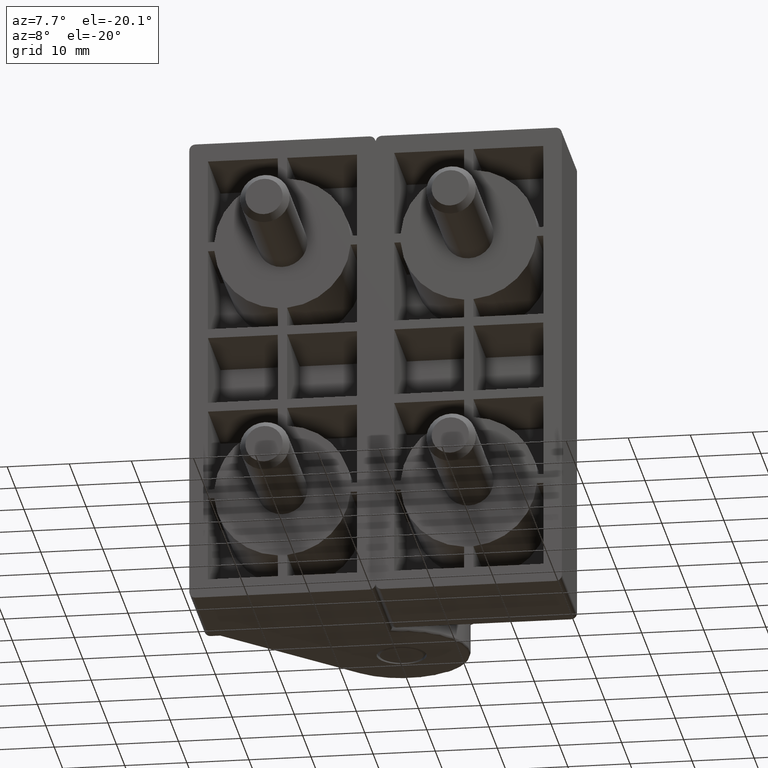
[diagram: clean part render]
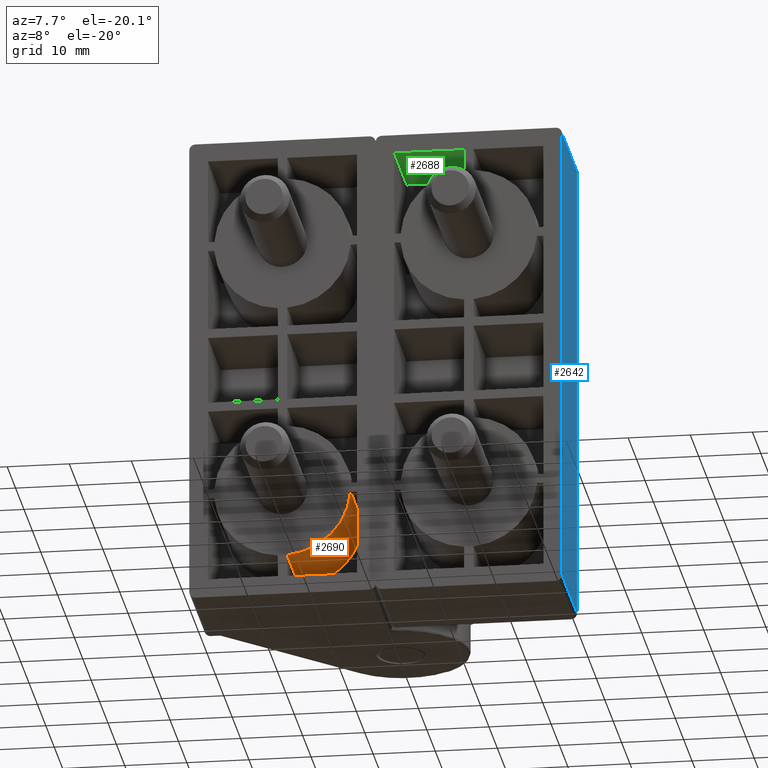
[diagram: same view with three faces highlighted in distinct colors, each labeled with its STEP entity id]
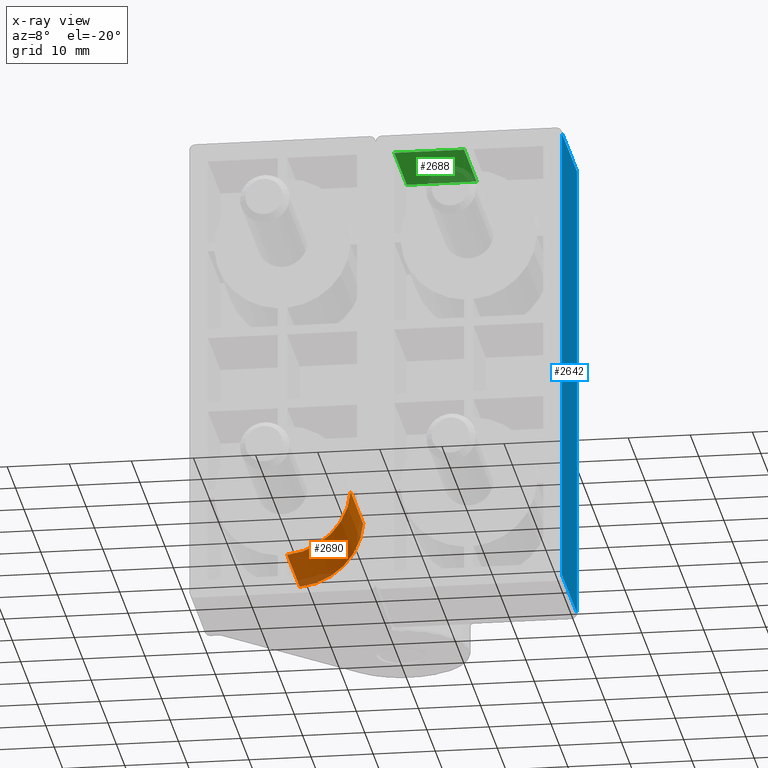
[diagram: x-ray of the same camera — body ghosted, the three highlighted faces saturated]
A machine part, auxiliary view with three faces highlighted in distinct colors.
The next image is the same camera in x-ray (body ghosted, the three faces saturated) — at least one of them is partly hidden behind the body in this view.
Their STEP definitions:

[orange] entity #2690 — the highlighted cylindrical surface (partial cylindrical patch) has radius 11 mm, axis along (0, -1, -0).
#191=LINE('',#4427,#434);
#192=LINE('',#4431,#435);
#434=VECTOR('',#3573,15.);
#435=VECTOR('',#3578,15.);
#679=CYLINDRICAL_SURFACE('',#2948,11.);
#824=FACE_OUTER_BOUND('',#1014,.T.);
#1014=EDGE_LOOP('',(#2295,#2296,#2297,#2298));
#1160=CIRCLE('',#2884,11.);
#1176=CIRCLE('',#2949,11.);
#1361=VERTEX_POINT('',#4276);
#1362=VERTEX_POINT('',#4278);
#1390=VERTEX_POINT('',#4425);
#1391=VERTEX_POINT('',#4429);
#1652=EDGE_CURVE('',#1362,#1361,#1160,.T.);
#1713=EDGE_CURVE('',#1390,#1361,#191,.T.);
#1714=EDGE_CURVE('',#1391,#1390,#1176,.T.);
#1715=EDGE_CURVE('',#1391,#1362,#192,.T.);
#2295=ORIENTED_EDGE('',*,*,#1652,.T.);
#2296=ORIENTED_EDGE('',*,*,#1713,.F.);
#2297=ORIENTED_EDGE('',*,*,#1714,.F.);
#2298=ORIENTED_EDGE('',*,*,#1715,.T.);
#2690=ADVANCED_FACE('',(#824),#679,.T.);
#2884=AXIS2_PLACEMENT_3D('',#4279,#3401,#3402);
#2948=AXIS2_PLACEMENT_3D('',#4428,#3574,#3575);
#2949=AXIS2_PLACEMENT_3D('',#4430,#3576,#3577);
#3401=DIRECTION('center_axis',(0.,1.,0.));
#3402=DIRECTION('ref_axis',(0.,0.,-1.));
#3573=DIRECTION('',(0.,-1.,0.));
#3574=DIRECTION('center_axis',(0.,-1.,0.));
#3575=DIRECTION('ref_axis',(0.,0.,-1.));
#3576=DIRECTION('center_axis',(0.,1.,0.));
#3577=DIRECTION('ref_axis',(0.,0.,-1.));
#3578=DIRECTION('',(0.,-1.,0.));
#4276=CARTESIAN_POINT('',(14.2500000000004,-31.,31.974402033824));
#4278=CARTESIAN_POINT('',(4.02559796617687,-31.,21.75));
#4279=CARTESIAN_POINT('Origin',(15.0000000000009,-31.,21.));
#4425=CARTESIAN_POINT('',(14.2500000000004,-16.,31.974402033824));
#4427=CARTESIAN_POINT('',(14.2500000000004,-16.,31.974402033824));
#4428=CARTESIAN_POINT('Origin',(15.0000000000009,-16.,21.));
#4429=CARTESIAN_POINT('',(4.02559796617687,-16.,21.75));
#4430=CARTESIAN_POINT('Origin',(15.0000000000009,-16.,21.));
#4431=CARTESIAN_POINT('',(4.02559796617687,-16.,21.75));

[blue] entity #2642 — the highlighted planar face has unit normal (-1, 0, 0).
#103=LINE('',#4160,#346);
#115=LINE('',#4203,#358);
#156=LINE('',#4302,#399);
#157=LINE('',#4303,#400);
#346=VECTOR('',#3309,75.);
#358=VECTOR('',#3357,75.);
#399=VECTOR('',#3418,17.9999999999999);
#400=VECTOR('',#3419,17.9999999999999);
#573=PLANE('',#2887);
#776=FACE_OUTER_BOUND('',#955,.T.);
#955=EDGE_LOOP('',(#2089,#2090,#2091,#2092));
#1310=VERTEX_POINT('',#4157);
#1311=VERTEX_POINT('',#4159);
#1323=VERTEX_POINT('',#4200);
#1324=VERTEX_POINT('',#4202);
#1585=EDGE_CURVE('',#1310,#1311,#103,.T.);
#1614=EDGE_CURVE('',#1324,#1323,#115,.T.);
#1664=EDGE_CURVE('',#1310,#1324,#156,.T.);
#1665=EDGE_CURVE('',#1323,#1311,#157,.T.);
#2089=ORIENTED_EDGE('',*,*,#1585,.F.);
#2090=ORIENTED_EDGE('',*,*,#1664,.T.);
#2091=ORIENTED_EDGE('',*,*,#1614,.T.);
#2092=ORIENTED_EDGE('',*,*,#1665,.T.);
#2642=ADVANCED_FACE('',(#776),#573,.F.);
#2887=AXIS2_PLACEMENT_3D('',#4301,#3416,#3417);
#3309=DIRECTION('',(0.,0.,-1.));
#3357=DIRECTION('',(0.,0.,-1.));
#3416=DIRECTION('center_axis',(-1.,0.,0.));
#3417=DIRECTION('ref_axis',(0.,0.,1.));
#3418=DIRECTION('',(0.,-1.,0.));
#3419=DIRECTION('',(0.,1.,0.));
#4157=CARTESIAN_POINT('',(30.0000000000009,-13.0000000000001,37.5));
#4159=CARTESIAN_POINT('',(30.0000000000009,-13.0000000000001,-37.5));
#4160=CARTESIAN_POINT('',(30.0000000000009,-13.0000000000001,38.5));
#4200=CARTESIAN_POINT('',(30.0000000000009,-31.,-37.5));
#4202=CARTESIAN_POINT('',(30.0000000000009,-31.,37.5));
#4203=CARTESIAN_POINT('',(30.0000000000009,-31.,38.5));
#4301=CARTESIAN_POINT('Origin',(30.0000000000009,-13.0000000000001,38.5));
#4302=CARTESIAN_POINT('',(30.0000000000009,-31.,37.5));
#4303=CARTESIAN_POINT('',(30.0000000000009,-13.0000000000001,-37.5));

[green] entity #2688 — the highlighted planar face has unit normal (0, 0, 1).
#145=LINE('',#4275,#388);
#187=LINE('',#4420,#430);
#188=LINE('',#4422,#431);
#189=LINE('',#4423,#432);
#388=VECTOR('',#3399,11.2500000000004);
#430=VECTOR('',#3567,15.);
#431=VECTOR('',#3568,11.2500000000004);
#432=VECTOR('',#3569,15.);
#595=PLANE('',#2946);
#822=FACE_OUTER_BOUND('',#1012,.T.);
#1012=EDGE_LOOP('',(#2287,#2288,#2289,#2290));
#1358=VERTEX_POINT('',#4271);
#1360=VERTEX_POINT('',#4274);
#1388=VERTEX_POINT('',#4419);
#1389=VERTEX_POINT('',#4421);
#1650=EDGE_CURVE('',#1360,#1358,#145,.T.);
#1709=EDGE_CURVE('',#1388,#1358,#187,.T.);
#1710=EDGE_CURVE('',#1389,#1388,#188,.T.);
#1711=EDGE_CURVE('',#1389,#1360,#189,.T.);
#2287=ORIENTED_EDGE('',*,*,#1650,.T.);
#2288=ORIENTED_EDGE('',*,*,#1709,.F.);
#2289=ORIENTED_EDGE('',*,*,#1710,.F.);
#2290=ORIENTED_EDGE('',*,*,#1711,.T.);
#2688=ADVANCED_FACE('',(#822),#595,.F.);
#2946=AXIS2_PLACEMENT_3D('',#4418,#3565,#3566);
#3399=DIRECTION('',(-1.,0.,0.));
#3565=DIRECTION('center_axis',(0.,0.,1.));
#3566=DIRECTION('ref_axis',(1.,0.,0.));
#3567=DIRECTION('',(0.,-1.,0.));
#3568=DIRECTION('',(-1.,0.,0.));
#3569=DIRECTION('',(0.,-1.,0.));
#4271=CARTESIAN_POINT('',(3.,-31.,35.5));
#4274=CARTESIAN_POINT('',(14.2500000000004,-31.,35.5));
#4275=CARTESIAN_POINT('',(14.2500000000004,-31.,35.5));
#4418=CARTESIAN_POINT('Origin',(14.2500000000004,-16.,35.5));
#4419=CARTESIAN_POINT('',(3.,-16.,35.5));
#4420=CARTESIAN_POINT('',(3.,-16.,35.5));
#4421=CARTESIAN_POINT('',(14.2500000000004,-16.,35.5));
#4422=CARTESIAN_POINT('',(14.2500000000004,-16.,35.5));
#4423=CARTESIAN_POINT('',(14.2500000000004,-16.,35.5));